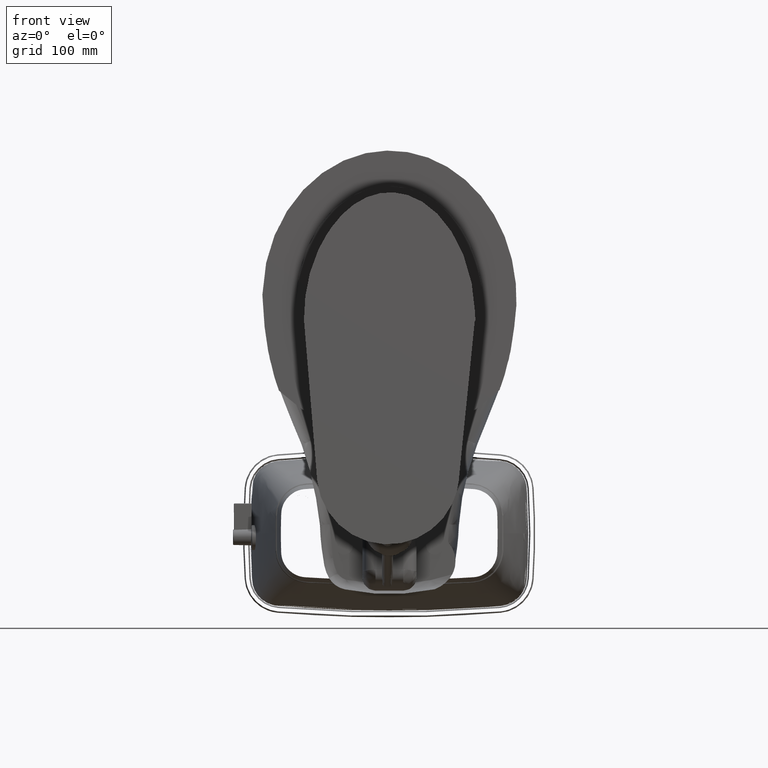
[diagram: clean part render]
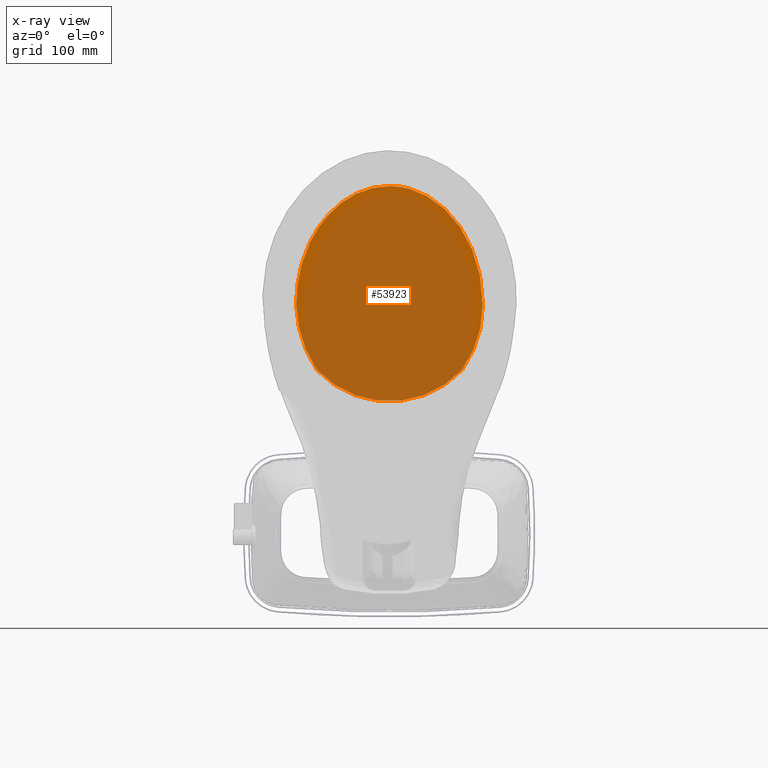
[diagram: x-ray — body ghosted, one internal face saturated and labeled with its STEP entity id]
A machine part, front view, then the same camera in x-ray: the body is ghosted and one INTERNAL B-rep face — a face not visible from any outside direction — is saturated and labeled: STEP entity #53923.
In plain terms, the highlighted planar face has unit normal (0, -1, 0).
Its self-contained STEP definition (entity closure, byte-faithful):
#1469 = CARTESIAN_POINT ( 'NONE',  ( 5.631707166676379800, -5.024364692602362400, 15.82677165354330900 ) ) ;
#1733 = DIRECTION ( 'NONE',  ( -0.0000000000000000000, -0.0000000000000000000, -1.000000000000000000 ) ) ;
#3217 = CIRCLE ( 'NONE', #191337, 6.710487485751181100 ) ;
#3775 = CARTESIAN_POINT ( 'NONE',  ( -4.377807759778140600, -1.075727452164524100, 15.82677165354330900 ) ) ;
#4031 = CARTESIAN_POINT ( 'NONE',  ( -4.090674658042608800, -9.946043675666683000, 15.82677165354330900 ) ) ;
#4342 = CARTESIAN_POINT ( 'NONE',  ( 4.991030490551590800, -8.338343766273837300, 15.82677165354330200 ) ) ;
#4695 = CARTESIAN_POINT ( 'NONE',  ( -2.485458176647564500, -11.44342481676007300, 15.82677165354331400 ) ) ;
#6028 = CARTESIAN_POINT ( 'NONE',  ( -1.642500599596525600, -11.87129436837286900, 15.82677165354331300 ) ) ;
#9728 = CARTESIAN_POINT ( 'NONE',  ( 3.087952104339417100, -11.01135772163147300, 15.82677165354330600 ) ) ;
#11831 = CARTESIAN_POINT ( 'NONE',  ( -5.558352314787949700, -6.179991793631074000, 15.82677165354331100 ) ) ;
#11960 = VERTEX_POINT ( 'NONE', #3775 ) ;
#12500 = CARTESIAN_POINT ( 'NONE',  ( -5.005566362293384600, -8.304168576290992500, 15.82677165354331400 ) ) ;
#16708 = CARTESIAN_POINT ( 'NONE',  ( -5.631707166673227700, -5.024364692602362400, 15.82677165354330900 ) ) ;
#18110 = CARTESIAN_POINT ( 'NONE',  ( 4.377807759778940000, -1.075727452165316400, 15.82677165354330900 ) ) ;
#19902 = CARTESIAN_POINT ( 'NONE',  ( 4.929635042865875500, -8.484745689398637900, 15.82677165354330400 ) ) ;
#20257 = CARTESIAN_POINT ( 'NONE',  ( -3.241955673780699200, -10.87831631807727100, 15.82677165354331300 ) ) ;
#20533 = B_SPLINE_CURVE_WITH_KNOTS ( 'NONE', 3,
 ( #98787, #114391, #160425, #130619, #67654, #159751, #192238, #113712, #20919, #37114, #6028, #37784, #35126, #159076, #4695, #113044, #83220, #21575, #129954, #190223, #20257, #146131, #129292, #145463, #128623, #115075, #68316, #53435, #4031, #50754, #66342, #174648, #97447, #81878, #144140, #51424, #66997, #12500, #88396, #59248, #89057, #27385, #25391, #196046, #133779, #11831, #105250, #197371, #120860, #134435, #56598, #73470 ),
 .UNSPECIFIED., .F., .F.,
 ( 4, 2, 2, 2, 2, 2, 2, 2, 2, 2, 2, 2, 2, 2, 2, 2, 2, 2, 2, 2, 2, 2, 2, 2, 2, 4 ),
 ( 0.2532393760184256100, 0.2689923801740069500, 0.2768688822517976200, 0.2808071332906930100, 0.2847453843295883500, 0.3004983884851699600, 0.3162513926407515300, 0.3201896436796468600, 0.3241278947185422500, 0.3320043967963329200, 0.3477574009519141500, 0.3556339030297047700, 0.3595721540686001000, 0.3635104051074954400, 0.3792634092630768900, 0.3950164134186583400, 0.4107694175742397900, 0.4147076686131352400, 0.4186459196520306300, 0.4265224217298214100, 0.4422754258854029200, 0.4580284300409843700, 0.4737814341965659300, 0.4816579362743566000, 0.4895344383521472700, 0.5052874425077287200 ),
 .UNSPECIFIED. ) ;
#20919 = CARTESIAN_POINT ( 'NONE',  ( -1.192281648603174400, -12.01559290181727700, 15.82677165354331400 ) ) ;
#21575 = CARTESIAN_POINT ( 'NONE',  ( -2.748872700398889100, -11.26869745110459500, 15.82677165354330900 ) ) ;
#23252 = CARTESIAN_POINT ( 'NONE',  ( 3.691975041584309100, -10.42621817023318100, 15.82677165354330600 ) ) ;
#25261 = CARTESIAN_POINT ( 'NONE',  ( 0.8425449879296438300, -12.10202733769105500, 15.82677165354331300 ) ) ;
#25391 = CARTESIAN_POINT ( 'NONE',  ( -5.389771763663630600, -7.109249382746069700, 15.82677165354330900 ) ) ;
#26715 = EDGE_CURVE ( 'NONE', #39346, #165929, #133046, .T. ) ;
#27385 = CARTESIAN_POINT ( 'NONE',  ( -5.338605281306280800, -7.311961173606988500, 15.82677165354330400 ) ) ;
#35126 = CARTESIAN_POINT ( 'NONE',  ( -2.213139207868761700, -11.60688920429627700, 15.82677165354330400 ) ) ;
#37114 = CARTESIAN_POINT ( 'NONE',  ( -1.445451962727757600, -11.94283014119177700, 15.82677165354331400 ) ) ;
#37784 = CARTESIAN_POINT ( 'NONE',  ( -2.026345810468013200, -11.70332775679356800, 15.82677165354330600 ) ) ;
#38789 = CARTESIAN_POINT ( 'NONE',  ( 3.797370063207385900, -10.30703163160264200, 15.82677165354331300 ) ) ;
#39346 = VERTEX_POINT ( 'NONE', #1469 ) ;
#39476 = CARTESIAN_POINT ( 'NONE',  ( 3.473891837888903200, -10.65571800556722700, 15.82677165354330400 ) ) ;
#40160 = CARTESIAN_POINT ( 'NONE',  ( 3.656279273339774400, -10.46524692559026400, 15.82677165354331100 ) ) ;
#42333 = DIRECTION ( 'NONE',  ( -0.0000000000000000000, -0.0000000000000000000, -1.000000000000000000 ) ) ;
#44872 = CARTESIAN_POINT ( 'NONE',  ( -5.631707166676315000, -5.024364692602321500, 15.82677165354330900 ) ) ;
#47859 = PLANE ( 'NONE',  #185739 ) ;
#50401 = CARTESIAN_POINT ( 'NONE',  ( 5.161116958567405700, -7.895153051233085900, 15.82677165354330400 ) ) ;
#50754 = CARTESIAN_POINT ( 'NONE',  ( -4.329856703620373900, -9.604076733696771800, 15.82677165354331100 ) ) ;
#51071 = CARTESIAN_POINT ( 'NONE',  ( 4.753115422135807400, -8.867357218346894500, 15.82677165354330900 ) ) ;
#51424 = CARTESIAN_POINT ( 'NONE',  ( -4.923148394254515600, -8.498292866570292100, 15.82677165354330900 ) ) ;
#52419 = CARTESIAN_POINT ( 'NONE',  ( 5.631707166676380700, -5.235915158784287400, 15.82677165354331300 ) ) ;
#52641 = VERTEX_POINT ( 'NONE', #44872 ) ;
#53435 = CARTESIAN_POINT ( 'NONE',  ( -3.963143585306373700, -10.11192249762603400, 15.82677165354331300 ) ) ;
#53753 = CARTESIAN_POINT ( 'NONE',  ( 1.933364660848354600, -11.74393611529907700, 15.82677165354330400 ) ) ;
#53923 = ADVANCED_FACE ( 'NONE', ( #134895 ), #47859, .F. ) ;
#54432 = CARTESIAN_POINT ( 'NONE',  ( 0.4210271730030490900, -12.15772166455384200, 15.82677165354331100 ) ) ;
#55097 = CARTESIAN_POINT ( 'NONE',  ( 0.3682801289742802500, -12.16242551214935800, 15.82677165354330900 ) ) ;
#55790 = CARTESIAN_POINT ( 'NONE',  ( 2.755538575419194600, -11.26758204885702200, 15.82677165354331100 ) ) ;
#56598 = CARTESIAN_POINT ( 'NONE',  ( -5.631707166676379800, -5.235345781502134700, 15.82677165354330400 ) ) ;
#56610 = DIRECTION ( 'NONE',  ( 1.000000000000000000, -8.142025447376142500E-016, 0.0000000000000000000 ) ) ;
#58942 = CARTESIAN_POINT ( 'NONE',  ( 3.948149942381078200E-016, -12.17742169616535400, 15.82677165354330900 ) ) ;
#59075 = VERTEX_POINT ( 'NONE', #173603 ) ;
#59248 = CARTESIAN_POINT ( 'NONE',  ( -5.155318287197341800, -7.911858764543369600, 15.82677165354331100 ) ) ;
#59911 = CARTESIAN_POINT ( 'NONE',  ( -1.047194169196456800E-016, -5.175044210779527800, 15.82677165354330900 ) ) ;
#61366 = CARTESIAN_POINT ( 'NONE',  ( -1.078645612587008100, -4.981845588066929200, 15.82677165354330900 ) ) ;
#62534 = CIRCLE ( 'NONE', #73921, 7.489430108822047800 ) ;
#63517 = ORIENTED_EDGE ( 'NONE', *, *, #26715, .F. ) ;
#64017 = VERTEX_POINT ( 'NONE', #18110 ) ;
#66342 = CARTESIAN_POINT ( 'NONE',  ( -4.441501085972155300, -9.427984376667883000, 15.82677165354330600 ) ) ;
#66651 = CARTESIAN_POINT ( 'NONE',  ( 4.656598544224261000, -9.053634843265758300, 15.82677165354331400 ) ) ;
#66997 = CARTESIAN_POINT ( 'NONE',  ( -4.944151079722749900, -8.449830563594448000, 15.82677165354331300 ) ) ;
#67308 = CARTESIAN_POINT ( 'NONE',  ( 5.226764028683920300, -7.696285618487080700, 15.82677165354330900 ) ) ;
#67654 = CARTESIAN_POINT ( 'NONE',  ( -0.8319292344588068400, -12.10019638770037200, 15.82677165354330600 ) ) ;
#68316 = CARTESIAN_POINT ( 'NONE',  ( -3.792842569955974700, -10.31227167309195300, 15.82677165354330900 ) ) ;
#68634 = CARTESIAN_POINT ( 'NONE',  ( 5.479887054521005200, -6.687436731316752900, 15.82677165354331400 ) ) ;
#69321 = CARTESIAN_POINT ( 'NONE',  ( 3.948149942381078200E-016, -12.17742169616535400, 15.82677165354330900 ) ) ;
#69368 = CIRCLE ( 'NONE', #192245, 6.710487485751181100 ) ;
#69994 = CARTESIAN_POINT ( 'NONE',  ( 2.215286252115172200, -11.60108929686578000, 15.82677165354331800 ) ) ;
#70664 = CARTESIAN_POINT ( 'NONE',  ( 1.449490386158972500, -11.94138269352486900, 15.82677165354331400 ) ) ;
#73470 = CARTESIAN_POINT ( 'NONE',  ( -5.631707166676315000, -5.024364692602321500, 15.82677165354330900 ) ) ;
#73921 = AXIS2_PLACEMENT_3D ( 'NONE', #176654, #145464, #192240 ) ;
#74129 = EDGE_CURVE ( 'NONE', #11960, #64017, #100279, .T. ) ;
#81526 = CARTESIAN_POINT ( 'NONE',  ( 5.011041043113325000, -8.289259272176428400, 15.82677165354330200 ) ) ;
#81674 = DIRECTION ( 'NONE',  ( -1.000000000000000000, 0.0000000000000000000, -0.0000000000000000000 ) ) ;
#81878 = CARTESIAN_POINT ( 'NONE',  ( -4.858327802536242000, -8.642521084345551300, 15.82677165354331300 ) ) ;
#83220 = CARTESIAN_POINT ( 'NONE',  ( -2.618412549527540500, -11.35757359922725000, 15.82677165354330600 ) ) ;
#84192 = CARTESIAN_POINT ( 'NONE',  ( 3.547888793747512100, -10.58077525531730800, 15.82677165354331800 ) ) ;
#84877 = CARTESIAN_POINT ( 'NONE',  ( 1.645678442542737300, -11.87005848481808800, 15.82677165354330600 ) ) ;
#85542 = CARTESIAN_POINT ( 'NONE',  ( 2.581757972186892400, -11.38663974168241900, 15.82677165354330400 ) ) ;
#86233 = CARTESIAN_POINT ( 'NONE',  ( 1.047921719062034700, -12.05736149220346200, 15.82677165354331400 ) ) ;
#88396 = CARTESIAN_POINT ( 'NONE',  ( -5.044476050625744900, -8.206498125708956000, 15.82677165354331300 ) ) ;
#89057 = CARTESIAN_POINT ( 'NONE',  ( -5.221377323377557100, -7.713265527197374500, 15.82677165354330600 ) ) ;
#89073 = DIRECTION ( 'NONE',  ( 1.000000000000000000, 0.0000000000000000000, 0.0000000000000000000 ) ) ;
#92488 = DIRECTION ( 'NONE',  ( 1.000000000000000000, 0.0000000000000000000, 0.0000000000000000000 ) ) ;
#96434 = CARTESIAN_POINT ( 'NONE',  ( 5.393412762467996800, -7.093830804783334700, 15.82677165354331400 ) ) ;
#97447 = CARTESIAN_POINT ( 'NONE',  ( -4.746520467806949900, -8.880475780150327100, 15.82677165354331400 ) ) ;
#98787 = CARTESIAN_POINT ( 'NONE',  ( 3.948149942381078200E-016, -12.17742169616535400, 15.82677165354330900 ) ) ;
#99756 = CARTESIAN_POINT ( 'NONE',  ( 0.5266227268971295200, -12.14639719915682300, 15.82677165354330900 ) ) ;
#100279 = CIRCLE ( 'NONE', #157545, 5.997466020665354900 ) ;
#100440 = CARTESIAN_POINT ( 'NONE',  ( 0.2101894289430396900, -12.17369527398785300, 15.82677165354331300 ) ) ;
#101108 = CARTESIAN_POINT ( 'NONE',  ( 3.246576559307775800, -10.87418096054589300, 15.82677165354330900 ) ) ;
#101153 = EDGE_LOOP ( 'NONE', ( #146961, #143235, #196462, #178299, #63517, #190520 ) ) ;
#101803 = CARTESIAN_POINT ( 'NONE',  ( 3.762504656554096300, -10.34713023842713200, 15.82677165354331100 ) ) ;
#105250 = CARTESIAN_POINT ( 'NONE',  ( -5.571220211893781000, -6.075250991697232400, 15.82677165354330200 ) ) ;
#112357 = EDGE_CURVE ( 'NONE', #52641, #11960, #62534, .T. ) ;
#112692 = CARTESIAN_POINT ( 'NONE',  ( 5.631707166676379800, -5.024364692602362400, 15.82677165354330900 ) ) ;
#113044 = CARTESIAN_POINT ( 'NONE',  ( -2.574432406289907300, -11.38660056677985800, 15.82677165354330900 ) ) ;
#113712 = CARTESIAN_POINT ( 'NONE',  ( -1.141303458934694400, -12.02930981134296000, 15.82677165354330400 ) ) ;
#114035 = CARTESIAN_POINT ( 'NONE',  ( 5.595252057303749600, -5.863523419376418700, 15.82677165354330600 ) ) ;
#114391 = CARTESIAN_POINT ( 'NONE',  ( -0.2090043052136304500, -12.17742169616535700, 15.82677165354331400 ) ) ;
#115075 = CARTESIAN_POINT ( 'NONE',  ( -3.758236231607274400, -10.35199039843943300, 15.82677165354331100 ) ) ;
#120860 = CARTESIAN_POINT ( 'NONE',  ( -5.602391647181650400, -5.760850590588016300, 15.82677165354331100 ) ) ;
#123068 = DIRECTION ( 'NONE',  ( 0.0000000000000000000, 0.0000000000000000000, -1.000000000000000000 ) ) ;
#124241 = EDGE_CURVE ( 'NONE', #59075, #39346, #69368, .T. ) ;
#128268 = CARTESIAN_POINT ( 'NONE',  ( 4.886883573835880200, -8.581237970042444400, 15.82677165354330400 ) ) ;
#128623 = CARTESIAN_POINT ( 'NONE',  ( -3.687899476370640100, -10.43070518032777700, 15.82677165354331100 ) ) ;
#129292 = CARTESIAN_POINT ( 'NONE',  ( -3.543585299713481400, -10.58520529159577500, 15.82677165354331400 ) ) ;
#129954 = CARTESIAN_POINT ( 'NONE',  ( -2.833873815446058300, -11.20705470628539900, 15.82677165354331300 ) ) ;
#130619 = CARTESIAN_POINT ( 'NONE',  ( -0.7284001085473357200, -12.11857763446072100, 15.82677165354330400 ) ) ;
#132284 = CARTESIAN_POINT ( 'NONE',  ( 3.968677633398208100, -10.10503489371929800, 15.82677165354331300 ) ) ;
#133046 = B_SPLINE_CURVE_WITH_KNOTS ( 'NONE', 3,
 ( #112692, #52419, #176293, #114035, #145773, #160070, #68634, #96434, #143126, #67308, #50401, #158722, #174280, #81526, #4342, #19902, #128268, #51071, #66651, #174958, #190537, #178318, #132284, #38789, #101803, #23252, #40160, #84192, #39476, #101108, #9728, #55790, #85542, #148478, #147799, #69994, #192558, #179001, #53753, #84877, #70664, #86233, #25261, #194571, #99756, #54432, #55097, #100440, #163440, #69321 ),
 .UNSPECIFIED., .F., .F.,
 ( 4, 2, 2, 2, 2, 2, 2, 2, 2, 2, 2, 2, 2, 2, 2, 2, 2, 2, 2, 2, 2, 2, 2, 2, 4 ),
 ( 0.0000000000000000000, 0.01582746100115186400, 0.03165492200230372900, 0.04748238300345558600, 0.06330984400460745700, 0.07913730500575932900, 0.08309417025604726200, 0.08705103550633522300, 0.09496476600691110300, 0.1107922270080629300, 0.1266196880092147500, 0.1424471490103666500, 0.1464040142606545800, 0.1503608795109424900, 0.1582746100115181600, 0.1741020710126694700, 0.1899295320138207600, 0.1938863972641085800, 0.1978432625143964100, 0.2057569930149720500, 0.2215844540161232300, 0.2374119150172744300, 0.2413687802675622300, 0.2453256455178499900, 0.2532393760184256100 ),
 .UNSPECIFIED. ) ;
#133779 = CARTESIAN_POINT ( 'NONE',  ( -5.514241651339665000, -6.493085850902688500, 15.82677165354330900 ) ) ;
#134435 = CARTESIAN_POINT ( 'NONE',  ( -5.624372403946348500, -5.445839501215882400, 15.82677165354330900 ) ) ;
#134895 = FACE_OUTER_BOUND ( 'NONE', #101153, .T. ) ;
#143126 = CARTESIAN_POINT ( 'NONE',  ( 5.342913795406040800, -7.295624855536672700, 15.82677165354331100 ) ) ;
#143235 = ORIENTED_EDGE ( 'NONE', *, *, #74129, .F. ) ;
#144140 = CARTESIAN_POINT ( 'NONE',  ( -4.880235776649485000, -8.594638595161422100, 15.82677165354331300 ) ) ;
#145463 = CARTESIAN_POINT ( 'NONE',  ( -3.652125873583013300, -10.46974562413936000, 15.82677165354331300 ) ) ;
#145464 = DIRECTION ( 'NONE',  ( -0.0000000000000000000, -0.0000000000000000000, -1.000000000000000000 ) ) ;
#145773 = CARTESIAN_POINT ( 'NONE',  ( 5.573543284864861400, -6.070879744278221000, 15.82677165354330900 ) ) ;
#146131 = CARTESIAN_POINT ( 'NONE',  ( -3.469499300192598700, -10.66008561780622300, 15.82677165354331400 ) ) ;
#146961 = ORIENTED_EDGE ( 'NONE', *, *, #147694, .F. ) ;
#147694 = EDGE_CURVE ( 'NONE', #64017, #59075, #3217, .T. ) ;
#147799 = CARTESIAN_POINT ( 'NONE',  ( 2.307894405918538900, -11.54951146624884300, 15.82677165354330900 ) ) ;
#148478 = CARTESIAN_POINT ( 'NONE',  ( 2.354007519045602700, -11.52287965423435700, 15.82677165354331100 ) ) ;
#150642 = DIRECTION ( 'NONE',  ( -0.0000000000000000000, -0.0000000000000000000, -1.000000000000000000 ) ) ;
#151318 = CARTESIAN_POINT ( 'NONE',  ( -1.078645612587008100, -4.981845588066929200, 15.82677165354330900 ) ) ;
#157545 = AXIS2_PLACEMENT_3D ( 'NONE', #59911, #150642, #89073 ) ;
#158722 = CARTESIAN_POINT ( 'NONE',  ( 5.068921231993082100, -8.141778892215118200, 15.82677165354330400 ) ) ;
#159076 = CARTESIAN_POINT ( 'NONE',  ( -2.440416459317779700, -11.47125036583570100, 15.82677165354331100 ) ) ;
#159751 = CARTESIAN_POINT ( 'NONE',  ( -0.9869273958994010400, -12.06704176985208200, 15.82677165354331100 ) ) ;
#160070 = CARTESIAN_POINT ( 'NONE',  ( 5.515860599385880500, -6.482836364682607500, 15.82677165354331300 ) ) ;
#160425 = CARTESIAN_POINT ( 'NONE',  ( -0.4172287441741320800, -12.16268940350839700, 15.82677165354330900 ) ) ;
#163440 = CARTESIAN_POINT ( 'NONE',  ( 0.1049960838317137400, -12.17742169616535700, 15.82677165354331300 ) ) ;
#165929 = VERTEX_POINT ( 'NONE', #58942 ) ;
#173603 = CARTESIAN_POINT ( 'NONE',  ( 5.631841873164173500, -4.981845588066929200, 15.82677165354330900 ) ) ;
#174280 = CARTESIAN_POINT ( 'NONE',  ( 5.049973977940554800, -8.191005893652560500, 15.82677165354330900 ) ) ;
#174648 = CARTESIAN_POINT ( 'NONE',  ( -4.649834626922316100, -9.066184966371848100, 15.82677165354330600 ) ) ;
#174958 = CARTESIAN_POINT ( 'NONE',  ( 4.448315149569905800, -9.416903828727045700, 15.82677165354331800 ) ) ;
#176293 = CARTESIAN_POINT ( 'NONE',  ( 5.624333528676698900, -5.446041035915573800, 15.82677165354330200 ) ) ;
#176654 = CARTESIAN_POINT ( 'NONE',  ( 1.854944208856732500, -5.228361104728345600, 15.82677165354330900 ) ) ;
#178299 = ORIENTED_EDGE ( 'NONE', *, *, #179773, .F. ) ;
#178318 = CARTESIAN_POINT ( 'NONE',  ( 4.096729965861738900, -9.937960777253401500, 15.82677165354330900 ) ) ;
#179001 = CARTESIAN_POINT ( 'NONE',  ( 2.028158008000803000, -11.69869801044213100, 15.82677165354330900 ) ) ;
#179773 = EDGE_CURVE ( 'NONE', #165929, #52641, #20533, .T. ) ;
#185739 = AXIS2_PLACEMENT_3D ( 'NONE', #16708, #123068, #81674 ) ;
#190223 = CARTESIAN_POINT ( 'NONE',  ( -3.083230327485790000, -11.01527813269592900, 15.82677165354331300 ) ) ;
#190520 = ORIENTED_EDGE ( 'NONE', *, *, #124241, .F. ) ;
#190537 = CARTESIAN_POINT ( 'NONE',  ( 4.336552516884499800, -9.593897554465412400, 15.82677165354331300 ) ) ;
#191337 = AXIS2_PLACEMENT_3D ( 'NONE', #151318, #42333, #56610 ) ;
#192238 = CARTESIAN_POINT ( 'NONE',  ( -1.038642569681666800, -12.05503287022380700, 15.82677165354330600 ) ) ;
#192240 = DIRECTION ( 'NONE',  ( 1.000000000000000000, 0.0000000000000000000, 0.0000000000000000000 ) ) ;
#192245 = AXIS2_PLACEMENT_3D ( 'NONE', #61366, #1733, #92488 ) ;
#192558 = CARTESIAN_POINT ( 'NONE',  ( 2.168709163314850300, -11.62608614470464900, 15.82677165354330400 ) ) ;
#194571 = CARTESIAN_POINT ( 'NONE',  ( 0.5795847332877365200, -12.13975794698441900, 15.82677165354330900 ) ) ;
#196046 = CARTESIAN_POINT ( 'NONE',  ( -5.477590353429773600, -6.699811833327861300, 15.82677165354331100 ) ) ;
#196462 = ORIENTED_EDGE ( 'NONE', *, *, #112357, .F. ) ;
#197371 = CARTESIAN_POINT ( 'NONE',  ( -5.593232292286105100, -5.865732528119867300, 15.82677165354330600 ) ) ;